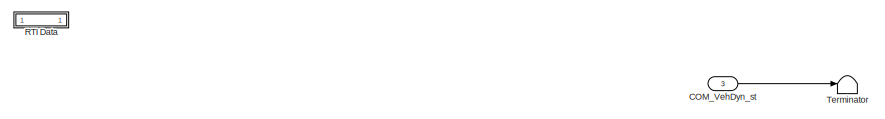
[diagram: root canvas - part 1/2, top left region]
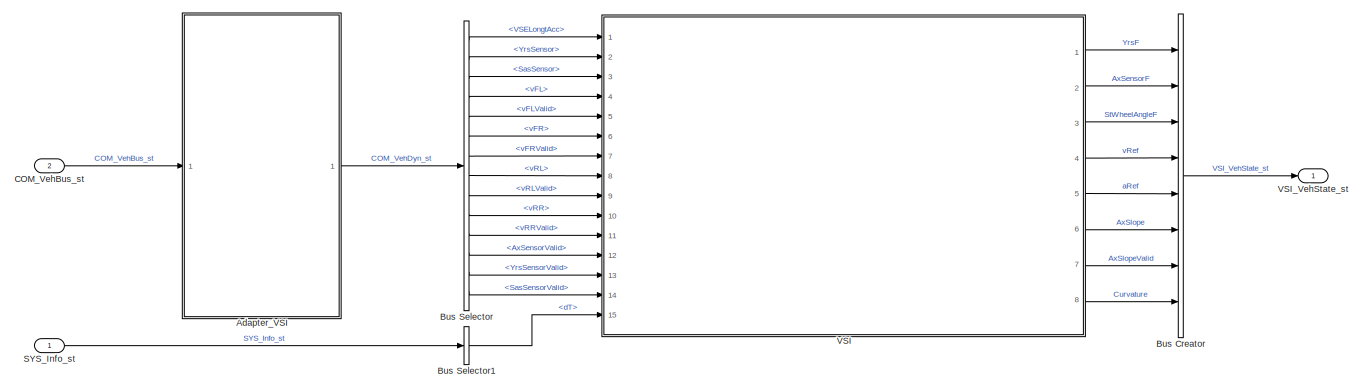
[diagram: root canvas - part 2/2, central region]
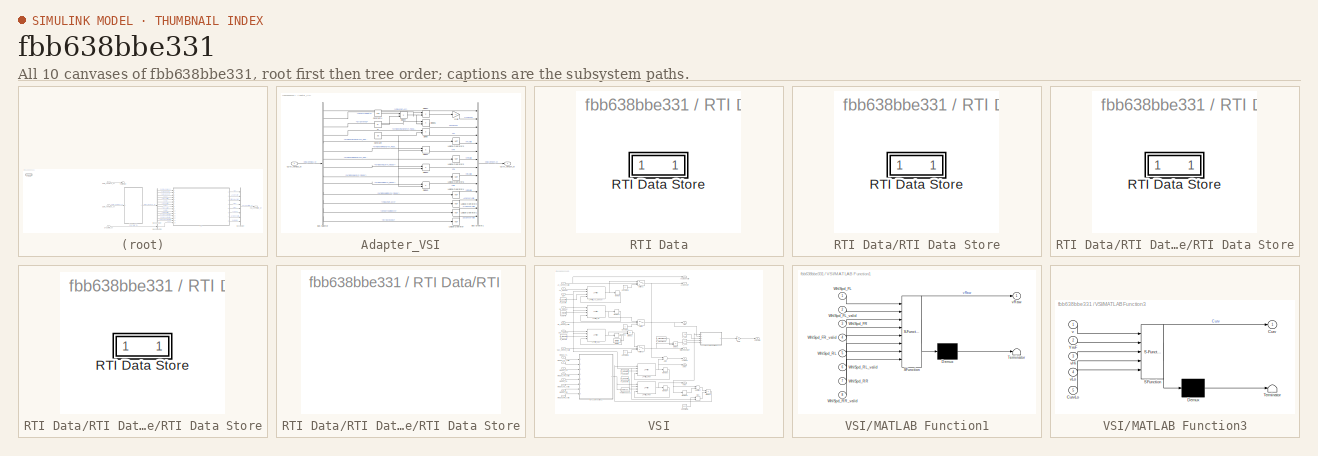
[diagram: thumbnail index - all 10 canvases of the model, root first then tree order]
MODEL slx_fbb638bbe331
KIND model
CONFIG AbsTol = auto
CONFIG EnableMultiTasking = off
CONFIG FixedStep = 0.01
CONFIG MaxStep = auto
CONFIG MinStep = auto
CONFIG PostLoadFcn = if any(exist('dsrtsu_mdlpostloadfcn', 'file') ~= 0), dsrtsu_mdlpostloadfcn('Execute', bdroot); end
CONFIG RelTol = 1e-3
CONFIG SampleTimeConstraint = Unconstrained
CONFIG Solver = FixedStepDiscrete
CONFIG SolverName = FixedStepDiscrete
CONFIG StartTime = 0.0
CONFIG StopTime = inf
BLOCK [SubSystem] Adapter_VSI
  Ports = [1, 1]
  RequestExecContextInheritance = off
BLOCK [BusCreator] Adapter_VSI/Bus Creator1
  DisplayOption = bar
  InheritFromInputs = on
  Inputs = 14
  NonVirtualBus = on
  OutDataTypeStr = Bus: COM_VEHDYN_ST
  Ports = [14, 1]
BLOCK [BusSelector] Adapter_VSI/Bus Selector
  OutputAsBus = off
  OutputSignals = x185.VSELongtAcc,x1E9.VehDynYawRate,x1E5.StrgWhlAng,x24E.WhlGndVelLNonDrvn_Radar,x24E.WhlGndVelLNonDrvnV_Radar,x24E.WhlGndVelRNonDrvn_Radar,x24E.WhlGndVelRNonDrvnV_Radar,x24C.WhlGndVelLDrvn_Radar,x24C.WhlGndVelLDrvn_Radar,x24C.WhlGndVelRDrvn_Radar,x24C.WhlGndVelRDrvnV_Radar,x185.VSELongtAccV,x1E9.VehDynYawRateV,x1E5.StrgWhlAngV
  Ports = [1, 14]
BLOCK [Inport] Adapter_VSI/COM_VehBus_st
  IconDisplay = Port number
  OutDataTypeStr = Bus: COM_VEHBUS_ST
BLOCK [Outport] Adapter_VSI/COM_VehDyn_st
  IconDisplay = Port number
  OutDataTypeStr = Bus: COM_VEHDYN_ST
BLOCK [Constant] Adapter_VSI/Constant
  Value = 3.6
BLOCK [Constant] Adapter_VSI/Constant4
  Value = 180
BLOCK [Product] Adapter_VSI/Divide
  InputSameDT = off
  Inputs = */
  OutDataTypeStr = single
  Ports = [2, 1]
  RndMeth = Floor
  SaturateOnIntegerOverflow = off
BLOCK [Product] Adapter_VSI/Divide1
  InputSameDT = off
  Inputs = */
  OutDataTypeStr = single
  Ports = [2, 1]
  RndMeth = Floor
  SaturateOnIntegerOverflow = off
BLOCK [Product] Adapter_VSI/Divide2
  InputSameDT = off
  Inputs = */
  OutDataTypeStr = single
  Ports = [2, 1]
  RndMeth = Floor
  SaturateOnIntegerOverflow = off
BLOCK [Product] Adapter_VSI/Divide3
  InputSameDT = off
  Inputs = */
  OutDataTypeStr = single
  Ports = [2, 1]
  RndMeth = Floor
  SaturateOnIntegerOverflow = off
BLOCK [Product] Adapter_VSI/Divide4
  InputSameDT = off
  Inputs = */
  OutDataTypeStr = Inherit: Inherit via internal rule
  Ports = [2, 1]
  RndMeth = Floor
  SaturateOnIntegerOverflow = off
BLOCK [Product] Adapter_VSI/Divide6
  InputSameDT = off
  Inputs = */
  OutDataTypeStr = single
  Ports = [2, 1]
  RndMeth = Floor
  SaturateOnIntegerOverflow = off
BLOCK [Product] Adapter_VSI/Divide7
  InputSameDT = off
  Inputs = */
  OutDataTypeStr = single
  Ports = [2, 1]
  RndMeth = Floor
  SaturateOnIntegerOverflow = off
BLOCK [Gain] Adapter_VSI/Gain
  Gain = -1
  OutDataTypeStr = Inherit: Inherit via internal rule
  ParamDataTypeStr = Inherit: Inherit via internal rule
  SaturateOnIntegerOverflow = off
BLOCK [Logic] Adapter_VSI/Logical Operator
  AllPortsSameDT = off
  Operator = NOT
  OutDataTypeStr = boolean
  Ports = [1, 1]
BLOCK [Logic] Adapter_VSI/Logical Operator1
  AllPortsSameDT = off
  Operator = NOT
  OutDataTypeStr = boolean
  Ports = [1, 1]
BLOCK [Logic] Adapter_VSI/Logical Operator2
  AllPortsSameDT = off
  Operator = NOT
  OutDataTypeStr = boolean
  Ports = [1, 1]
BLOCK [Logic] Adapter_VSI/Logical Operator3
  AllPortsSameDT = off
  Operator = NOT
  OutDataTypeStr = boolean
  Ports = [1, 1]
BLOCK [Logic] Adapter_VSI/Logical Operator4
  AllPortsSameDT = off
  Operator = NOT
  OutDataTypeStr = boolean
  Ports = [1, 1]
BLOCK [Logic] Adapter_VSI/Logical Operator5
  AllPortsSameDT = off
  Operator = NOT
  OutDataTypeStr = boolean
  Ports = [1, 1]
BLOCK [Logic] Adapter_VSI/Logical Operator6
  AllPortsSameDT = off
  Operator = NOT
  OutDataTypeStr = boolean
  Ports = [1, 1]
BLOCK [Constant] Adapter_VSI/Pi
  OutDataTypeStr = Inherit: Inherit via back propagation
  Value = pi
BLOCK [BusCreator] Bus Creator
  DisplayOption = bar
  InheritFromInputs = off
  Inputs = 8
  NonVirtualBus = on
  OutDataTypeStr = Bus: VSI_VEHSTATE_ST
  Ports = [8, 1]
BLOCK [BusSelector] Bus Selector
  OutputAsBus = off
  OutputSignals = VSELongtAcc,YrsSensor,SasSensor,vFL,vFLValid,vFR,vFRValid,vRL,vRLValid,vRR,vRRValid,AxSensorValid,YrsSensorValid,SasSensorValid
  Ports = [1, 14]
BLOCK [BusSelector] Bus Selector1
  OutputAsBus = off
  OutputSignals = dT
  Ports = [1, 1]
BLOCK [Inport] COM_VehBus_st
  BusOutputAsStruct = on
  IconDisplay = Port number
  OutDataTypeStr = Bus: COM_VEHBUS_ST
  Port = 2
BLOCK [Inport] COM_VehDyn_st
  BusOutputAsStruct = on
  IconDisplay = Port number
  OutDataTypeStr = Bus: COM_VEHDYN_ST
  Port = 3
BLOCK [SubSystem] RTI Data
  CopyFcn = if exist('rtidc'), try,  rtidc('DataHostBlockClbCopy', gcbh); catch, disp(['Warning: ''CopyFcn'' for RTI Data block failed: ' lasterr]); end, end,
  DeleteFcn = if exist('rtidc'), try,  rtidc('DataHostBlockClbDelete', gcbh); catch, disp(['Warning: ''DeleteFcn'' for RTI Data block failed: ' lasterr]); end, end,
  LoadFcn = if exist('rtidc'), try,  rtidc('DataHostBlockClbLoad', gcbh); catch, disp(['Warning: ''LoadFcn'' for RTI Data block failed: ' lasterr]); end, end,
  ModelCloseFcn = if exist('rtidc'), try,  rtidc('DataHostBlockClbModelClose', gcbh); catch, disp(['Warning: ''ModelCloseFcn'' for RTI Data block failed: ' lasterr]); end, end,
  NameChangeFcn = if exist('rtidc'), try,  rtidc('DataHostBlockClbNameChange', gcbh); catch, disp(['Warning: ''NameChangeFcn'' for RTI Data block failed: ' lasterr]); end, end,
  Ports = []
  PostSaveFcn = if exist('rtidc'), try,  rtidc('DataHostBlockClbPostSave', gcbh); catch, disp(['Warning: ''PostSaveFcn'' for RTI Data block failed: ' lasterr]); end, end,
  PreSaveFcn = if exist('rtidc'), try,  rtidc('DataHostBlockClbPreSave', gcbh); catch, disp(['Warning: ''PreSaveFcn'' for RTI Data block failed: ' lasterr]); end, end,
  RequestExecContextInheritance = off
  Tag = struct('RTIDataServer',struct('RTIDataServerVs','2','RTIModelDescription','struct(''main'',''VSI'',''sub'','''',''isMp'',0)'))
BLOCK [SubSystem] RTI Data/RTI Data Store
  Ports = []
  RequestExecContextInheritance = off
  Tag = struct('private',struct('version',struct('dsVer',uint32(2),'dsVerCreation',uint32(2),'RTI',struct('ver','7.12','type','RTI1401')),'access',struct('type','Model','isPerm',1,'created',['20-Nov-2020 11:10:38'],'modified',['07-Jan-2021 20:09:42'],'location','')),'public',struct('main',struct('data',[]),'sub',struct('name',{{'VSI'}},'data',{{struct('TH',struct('thTaskInfo',struct('taskType',{'TIMER','H...<+877ch>
BLOCK [SubSystem] RTI Data/RTI Data Store/RTI Data Store
  Ports = []
  RequestExecContextInheritance = off
BLOCK [SubSystem] RTI Data/RTI Data Store/RTI Data Store/RTI Data Store
  Ports = []
  RequestExecContextInheritance = off
BLOCK [SubSystem] RTI Data/RTI Data Store/RTI Data Store/RTI Data Store/RTI Data Store
  Ports = []
  RequestExecContextInheritance = off
BLOCK [Inport] SYS_Info_st
  BusOutputAsStruct = on
  IconDisplay = Port number
  OutDataTypeStr = Bus: SYS_INFO_ST
BLOCK [Terminator] Terminator
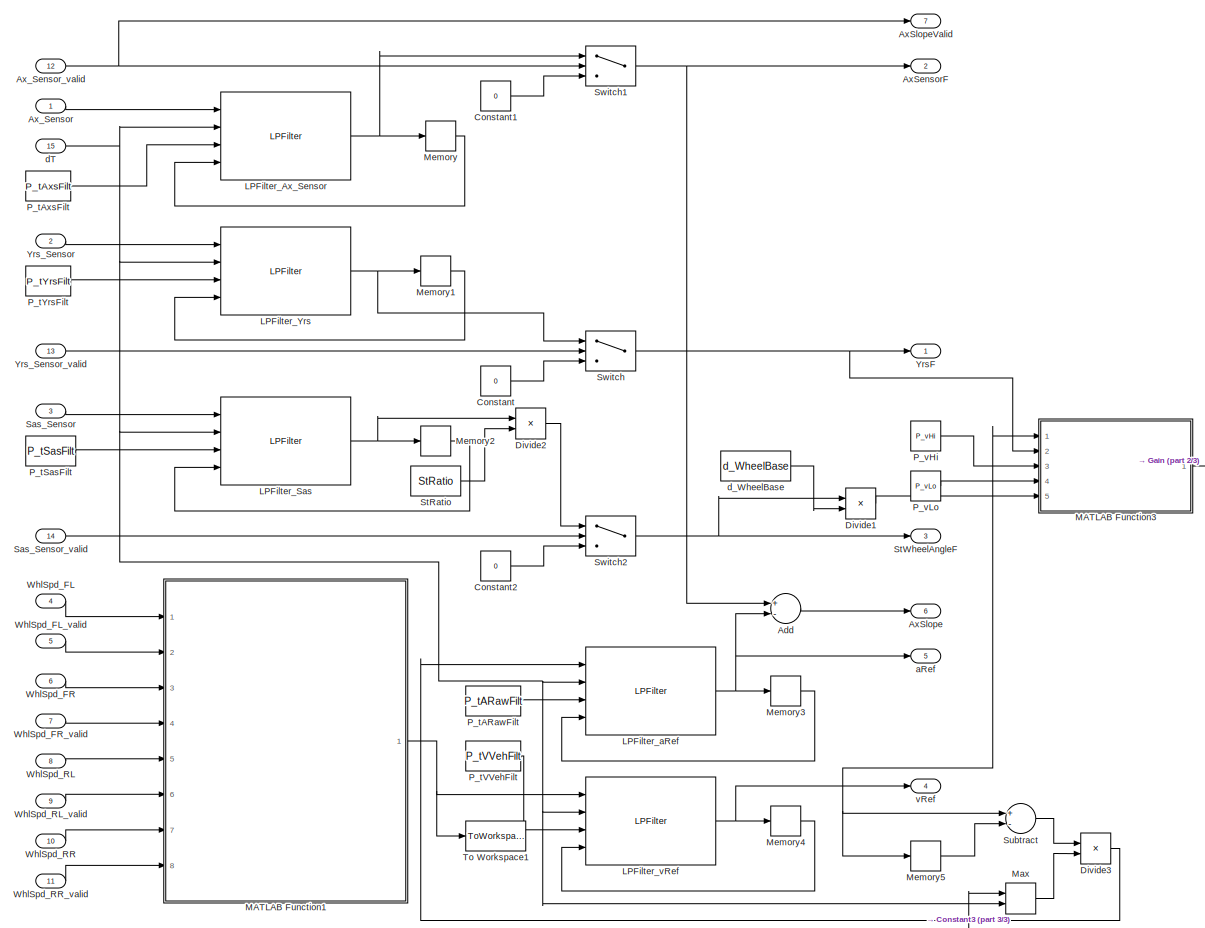
[diagram: VSI - part 1/3, most of the canvas]
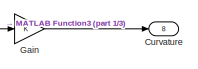
[diagram: VSI - part 2/3, middle right region]
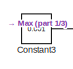
[diagram: VSI - part 3/3, bottom center region]
BLOCK [SubSystem] VSI
  Ports = [15, 8]
  RequestExecContextInheritance = off
BLOCK [Sum] VSI/Add
  InputSameDT = off
  Inputs = +-
  OutDataTypeStr = Inherit: Inherit via internal rule
  Ports = [2, 1]
  SaturateOnIntegerOverflow = off
BLOCK [Outport] VSI/AxSensorF
  IconDisplay = Port number
  Port = 2
BLOCK [Outport] VSI/AxSlope
  IconDisplay = Port number
  Port = 6
BLOCK [Outport] VSI/AxSlopeValid
  IconDisplay = Port number
  Port = 7
BLOCK [Inport] VSI/Ax_Sensor
  IconDisplay = Port number
BLOCK [Inport] VSI/Ax_Sensor_valid
  IconDisplay = Port number
  Port = 12
BLOCK [Constant] VSI/Constant
  Value = 0
BLOCK [Constant] VSI/Constant1
  Value = 0
BLOCK [Constant] VSI/Constant2
  Value = 0
BLOCK [Constant] VSI/Constant3
  Value = 0.001
BLOCK [Outport] VSI/Curvature
  IconDisplay = Port number
  Port = 8
BLOCK [Product] VSI/Divide1
  InputSameDT = off
  Inputs = */
  OutDataTypeStr = Inherit: Inherit via internal rule
  Ports = [2, 1]
  RndMeth = Floor
  SaturateOnIntegerOverflow = off
BLOCK [Product] VSI/Divide2
  InputSameDT = off
  Inputs = */
  OutDataTypeStr = Inherit: Inherit via internal rule
  Ports = [2, 1]
  RndMeth = Floor
  SaturateOnIntegerOverflow = off
BLOCK [Product] VSI/Divide3
  InputSameDT = off
  Inputs = */
  OutDataTypeStr = Inherit: Inherit via internal rule
  Ports = [2, 1]
  RndMeth = Floor
  SaturateOnIntegerOverflow = off
BLOCK [Gain] VSI/Gain
  OutDataTypeStr = Inherit: Inherit via internal rule
  ParamDataTypeStr = Inherit: Inherit via internal rule
  SaturateOnIntegerOverflow = off
BLOCK [Reference] VSI/LPFilter_Ax_Sensor  REF=LPFilter/LPFilter
  Ports = [4, 1]
  SourceBlock = LPFilter/LPFilter
  SourceProductName = CustomLib
  SourceType = SubSystem
BLOCK [Reference] VSI/LPFilter_Sas  REF=LPFilter/LPFilter
  Ports = [4, 1]
  SourceBlock = LPFilter/LPFilter
  SourceProductName = CustomLib
  SourceType = SubSystem
BLOCK [Reference] VSI/LPFilter_Yrs  REF=LPFilter/LPFilter
  Ports = [4, 1]
  SourceBlock = LPFilter/LPFilter
  SourceProductName = CustomLib
  SourceType = SubSystem
BLOCK [Reference] VSI/LPFilter_aRef  REF=LPFilter/LPFilter
  Ports = [4, 1]
  SourceBlock = LPFilter/LPFilter
  SourceProductName = CustomLib
  SourceType = SubSystem
BLOCK [Reference] VSI/LPFilter_vRef  REF=LPFilter/LPFilter
  Ports = [4, 1]
  SourceBlock = LPFilter/LPFilter
  SourceProductName = CustomLib
  SourceType = SubSystem
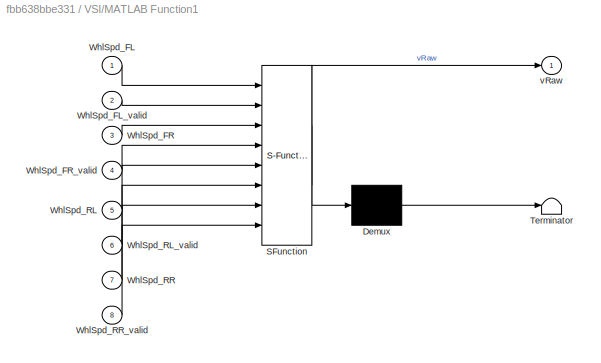
BLOCK [SubSystem] VSI/MATLAB Function1
  ErrorFcn = Stateflow.Translate.translate
  PermitHierarchicalResolution = ExplicitOnly
  Ports = [8, 1]
  RequestExecContextInheritance = off
  SFBlockType = MATLAB Function
  TreatAsAtomicUnit = on
BLOCK [Demux] VSI/MATLAB Function1/ Demux 
  Outputs = 1
  Ports = [1, 1]
BLOCK [S-Function] VSI/MATLAB Function1/ SFunction 
  EnableBusSupport = on
  FunctionName = sf_sfun
  PortCounts = [8 2]
  Ports = [8, 2]
  SFcnIsStateOwnerBlock = off
  SFunctionDeploymentMode = off
  Tag = Stateflow S-Function VSI 3
BLOCK [Terminator] VSI/MATLAB Function1/ Terminator 
BLOCK [Inport] VSI/MATLAB Function1/WhlSpd_FL
  IconDisplay = Port number
BLOCK [Inport] VSI/MATLAB Function1/WhlSpd_FL_valid
  IconDisplay = Port number
  Port = 2
BLOCK [Inport] VSI/MATLAB Function1/WhlSpd_FR
  IconDisplay = Port number
  Port = 3
BLOCK [Inport] VSI/MATLAB Function1/WhlSpd_FR_valid
  IconDisplay = Port number
  Port = 4
BLOCK [Inport] VSI/MATLAB Function1/WhlSpd_RL
  IconDisplay = Port number
  Port = 5
BLOCK [Inport] VSI/MATLAB Function1/WhlSpd_RL_valid
  IconDisplay = Port number
  Port = 6
BLOCK [Inport] VSI/MATLAB Function1/WhlSpd_RR
  IconDisplay = Port number
  Port = 7
BLOCK [Inport] VSI/MATLAB Function1/WhlSpd_RR_valid
  IconDisplay = Port number
  Port = 8
BLOCK [Outport] VSI/MATLAB Function1/vRaw
  IconDisplay = Port number
BLOCK [SubSystem] VSI/MATLAB Function3
  ErrorFcn = Stateflow.Translate.translate
  PermitHierarchicalResolution = ExplicitOnly
  Ports = [5, 1]
  RequestExecContextInheritance = off
  SFBlockType = MATLAB Function
  TreatAsAtomicUnit = on
BLOCK [Demux] VSI/MATLAB Function3/ Demux 
  Outputs = 1
  Ports = [1, 1]
BLOCK [S-Function] VSI/MATLAB Function3/ SFunction 
  EnableBusSupport = on
  FunctionName = sf_sfun
  PortCounts = [5 2]
  Ports = [5, 2]
  SFcnIsStateOwnerBlock = off
  SFunctionDeploymentMode = off
  Tag = Stateflow S-Function VSI 5
BLOCK [Terminator] VSI/MATLAB Function3/ Terminator 
BLOCK [Outport] VSI/MATLAB Function3/Curv
  IconDisplay = Port number
BLOCK [Inport] VSI/MATLAB Function3/CurvLo
  IconDisplay = Port number
  Port = 5
BLOCK [Inport] VSI/MATLAB Function3/YrsF
  IconDisplay = Port number
  Port = 2
BLOCK [Inport] VSI/MATLAB Function3/v
  IconDisplay = Port number
BLOCK [Inport] VSI/MATLAB Function3/vHi
  IconDisplay = Port number
  Port = 3
BLOCK [Inport] VSI/MATLAB Function3/vLo
  IconDisplay = Port number
  Port = 4
BLOCK [MinMax] VSI/Max
  Function = max
  InputSameDT = off
  Inputs = 2
  OutDataTypeStr = single
  Ports = [2, 1]
  SaturateOnIntegerOverflow = off
BLOCK [Memory] VSI/Memory
BLOCK [Memory] VSI/Memory1
BLOCK [Memory] VSI/Memory2
BLOCK [Memory] VSI/Memory3
BLOCK [Memory] VSI/Memory4
BLOCK [Memory] VSI/Memory5
BLOCK [Constant] VSI/P_tARawFilt
  Value = P_tARawFilt
BLOCK [Constant] VSI/P_tAxsFilt
  Value = P_tAxsFilt
BLOCK [Constant] VSI/P_tSasFilt
  Value = P_tSasFilt
BLOCK [Constant] VSI/P_tVVehFilt
  Value = P_tVVehFilt
BLOCK [Constant] VSI/P_tYrsFilt
  Value = P_tYrsFilt
BLOCK [Constant] VSI/P_vHi
  Value = P_vHi
BLOCK [Constant] VSI/P_vLo
  Value = P_vLo
BLOCK [Inport] VSI/Sas_Sensor
  IconDisplay = Port number
  Port = 3
BLOCK [Inport] VSI/Sas_Sensor_valid
  IconDisplay = Port number
  Port = 14
BLOCK [Constant] VSI/StRatio
  Value = StRatio
BLOCK [Outport] VSI/StWheelAngleF
  IconDisplay = Port number
  Port = 3
BLOCK [Sum] VSI/Subtract
  InputSameDT = off
  Inputs = +-
  OutDataTypeStr = Inherit: Inherit via internal rule
  Ports = [2, 1]
  SaturateOnIntegerOverflow = off
BLOCK [Switch] VSI/Switch
  Criteria = u2 > Threshold
  InputSameDT = off
  OutDataTypeStr = single
  SaturateOnIntegerOverflow = off
BLOCK [Switch] VSI/Switch1
  Criteria = u2 > Threshold
  InputSameDT = off
  OutDataTypeStr = single
  SaturateOnIntegerOverflow = off
BLOCK [Switch] VSI/Switch2
  Criteria = u2 > Threshold
  InputSameDT = off
  SaturateOnIntegerOverflow = off
BLOCK [ToWorkspace] VSI/To Workspace1
  FixptAsFi = on
  MaxDataPoints = inf
  Ports = [1]
  SampleTime = -1
  Save2DSignal = 3-D array (concatenate along third dimension)
  SaveFormat = Timeseries
  VariableName = vRaw
BLOCK [Inport] VSI/WhlSpd_FL
  IconDisplay = Port number
  Port = 4
BLOCK [Inport] VSI/WhlSpd_FL_valid
  IconDisplay = Port number
  Port = 5
BLOCK [Inport] VSI/WhlSpd_FR
  IconDisplay = Port number
  Port = 6
BLOCK [Inport] VSI/WhlSpd_FR_valid
  IconDisplay = Port number
  Port = 7
BLOCK [Inport] VSI/WhlSpd_RL
  IconDisplay = Port number
  Port = 8
BLOCK [Inport] VSI/WhlSpd_RL_valid
  IconDisplay = Port number
  Port = 9
BLOCK [Inport] VSI/WhlSpd_RR
  IconDisplay = Port number
  Port = 10
BLOCK [Inport] VSI/WhlSpd_RR_valid
  IconDisplay = Port number
  Port = 11
BLOCK [Outport] VSI/YrsF
  IconDisplay = Port number
BLOCK [Inport] VSI/Yrs_Sensor
  IconDisplay = Port number
  Port = 2
BLOCK [Inport] VSI/Yrs_Sensor_valid
  IconDisplay = Port number
  Port = 13
BLOCK [Outport] VSI/aRef
  IconDisplay = Port number
  Port = 5
BLOCK [Inport] VSI/dT
  IconDisplay = Port number
  Port = 15
BLOCK [Constant] VSI/d_WheelBase
  Value = d_WheelBase
BLOCK [Outport] VSI/vRef
  IconDisplay = Port number
  Port = 4
BLOCK [Outport] VSI_VehState_st
  IconDisplay = Port number
  OutDataTypeStr = Bus: VSI_VEHSTATE_ST
LINE Adapter_VSI/Bus Creator1:1 -> Adapter_VSI/COM_VehDyn_st:1
LINE Adapter_VSI/Bus Selector:1 -> Adapter_VSI/Bus Creator1:1
LINE Adapter_VSI/Bus Selector:10 -> Adapter_VSI/Divide3:1
LINE Adapter_VSI/Bus Selector:11 -> Adapter_VSI/Logical Operator4:1
LINE Adapter_VSI/Bus Selector:12 -> Adapter_VSI/Logical Operator2:1
LINE Adapter_VSI/Bus Selector:13 -> Adapter_VSI/Logical Operator1:1
LINE Adapter_VSI/Bus Selector:14 -> Adapter_VSI/Logical Operator:1
LINE Adapter_VSI/Bus Selector:2 -> Adapter_VSI/Divide7:1
LINE Adapter_VSI/Bus Selector:3 -> Adapter_VSI/Divide6:1
LINE Adapter_VSI/Bus Selector:4 -> Adapter_VSI/Divide:1
LINE Adapter_VSI/Bus Selector:5 -> Adapter_VSI/Logical Operator3:1
LINE Adapter_VSI/Bus Selector:6 -> Adapter_VSI/Divide1:1
LINE Adapter_VSI/Bus Selector:7 -> Adapter_VSI/Logical Operator5:1
LINE Adapter_VSI/Bus Selector:8 -> Adapter_VSI/Divide2:1
LINE Adapter_VSI/Bus Selector:9 -> Adapter_VSI/Logical Operator6:1
LINE Adapter_VSI/COM_VehBus_st:1 -> Adapter_VSI/Bus Selector:1
LINE Adapter_VSI/Constant4:1 -> Adapter_VSI/Divide4:1
NET Adapter_VSI/Constant:1 -> Adapter_VSI/Divide1:2, Adapter_VSI/Divide2:2, Adapter_VSI/Divide3:2, Adapter_VSI/Divide:2
LINE Adapter_VSI/Divide1:1 -> Adapter_VSI/Bus Creator1:6
LINE Adapter_VSI/Divide2:1 -> Adapter_VSI/Bus Creator1:8
LINE Adapter_VSI/Divide3:1 -> Adapter_VSI/Bus Creator1:10
NET Adapter_VSI/Divide4:1 -> Adapter_VSI/Divide6:2, Adapter_VSI/Divide7:2
LINE Adapter_VSI/Divide6:1 -> Adapter_VSI/Bus Creator1:3
LINE Adapter_VSI/Divide7:1 -> Adapter_VSI/Gain:1
LINE Adapter_VSI/Divide:1 -> Adapter_VSI/Bus Creator1:4
LINE Adapter_VSI/Gain:1 -> Adapter_VSI/Bus Creator1:2
LINE Adapter_VSI/Logical Operator1:1 -> Adapter_VSI/Bus Creator1:13
LINE Adapter_VSI/Logical Operator2:1 -> Adapter_VSI/Bus Creator1:12
LINE Adapter_VSI/Logical Operator3:1 -> Adapter_VSI/Bus Creator1:5
LINE Adapter_VSI/Logical Operator4:1 -> Adapter_VSI/Bus Creator1:11
LINE Adapter_VSI/Logical Operator5:1 -> Adapter_VSI/Bus Creator1:7
LINE Adapter_VSI/Logical Operator6:1 -> Adapter_VSI/Bus Creator1:9
LINE Adapter_VSI/Logical Operator:1 -> Adapter_VSI/Bus Creator1:14
LINE Adapter_VSI/Pi:1 -> Adapter_VSI/Divide4:2
LINE Adapter_VSI:1 -> Bus Selector:1
LINE Bus Creator:1 -> VSI_VehState_st:1
LINE Bus Selector1:1 -> VSI:15
LINE Bus Selector:1 -> VSI:1
LINE Bus Selector:10 -> VSI:10
LINE Bus Selector:11 -> VSI:11
LINE Bus Selector:12 -> VSI:12
LINE Bus Selector:13 -> VSI:13
LINE Bus Selector:14 -> VSI:14
LINE Bus Selector:2 -> VSI:2
LINE Bus Selector:3 -> VSI:3
LINE Bus Selector:4 -> VSI:4
LINE Bus Selector:5 -> VSI:5
LINE Bus Selector:6 -> VSI:6
LINE Bus Selector:7 -> VSI:7
LINE Bus Selector:8 -> VSI:8
LINE Bus Selector:9 -> VSI:9
LINE COM_VehBus_st:1 -> Adapter_VSI:1
LINE COM_VehDyn_st:1 -> Terminator:1
LINE SYS_Info_st:1 -> Bus Selector1:1
LINE VSI/Add:1 -> VSI/AxSlope:1
LINE VSI/Ax_Sensor:1 -> VSI/LPFilter_Ax_Sensor:1
NET VSI/Ax_Sensor_valid:1 -> VSI/AxSlopeValid:1, VSI/Switch1:2
LINE VSI/Constant1:1 -> VSI/Switch1:3
LINE VSI/Constant2:1 -> VSI/Switch2:3
LINE VSI/Constant3:1 -> VSI/Max:1
LINE VSI/Constant:1 -> VSI/Switch:3
LINE VSI/Divide1:1 -> VSI/MATLAB Function3:5
LINE VSI/Divide2:1 -> VSI/Switch2:1
LINE VSI/Divide3:1 -> VSI/LPFilter_aRef:1
LINE VSI/Gain:1 -> VSI/Curvature:1
NET VSI/LPFilter_Ax_Sensor:1 -> VSI/Memory:1, VSI/Switch1:1
NET VSI/LPFilter_Sas:1 -> VSI/Divide2:1, VSI/Memory2:1
NET VSI/LPFilter_Yrs:1 -> VSI/Memory1:1, VSI/Switch:1
NET VSI/LPFilter_aRef:1 -> VSI/Add:2, VSI/Memory3:1, VSI/aRef:1
NET VSI/LPFilter_vRef:1 -> VSI/MATLAB Function3:1, VSI/Memory4:1, VSI/Memory5:1, VSI/Subtract:1, VSI/vRef:1
NET VSI/MATLAB Function1:1 -> VSI/LPFilter_vRef:1, VSI/To Workspace1:1
LINE VSI/MATLAB Function3:1 -> VSI/Gain:1
LINE VSI/Max:1 -> VSI/Divide3:2
LINE VSI/Memory1:1 -> VSI/LPFilter_Yrs:4
LINE VSI/Memory2:1 -> VSI/LPFilter_Sas:4
LINE VSI/Memory3:1 -> VSI/LPFilter_aRef:4
LINE VSI/Memory4:1 -> VSI/LPFilter_vRef:4
LINE VSI/Memory5:1 -> VSI/Subtract:2
LINE VSI/Memory:1 -> VSI/LPFilter_Ax_Sensor:4
LINE VSI/P_tARawFilt:1 -> VSI/LPFilter_aRef:3
LINE VSI/P_tAxsFilt:1 -> VSI/LPFilter_Ax_Sensor:3
LINE VSI/P_tSasFilt:1 -> VSI/LPFilter_Sas:3
LINE VSI/P_tVVehFilt:1 -> VSI/LPFilter_vRef:3
LINE VSI/P_tYrsFilt:1 -> VSI/LPFilter_Yrs:3
LINE VSI/P_vHi:1 -> VSI/MATLAB Function3:3
LINE VSI/P_vLo:1 -> VSI/MATLAB Function3:4
LINE VSI/Sas_Sensor:1 -> VSI/LPFilter_Sas:1
LINE VSI/Sas_Sensor_valid:1 -> VSI/Switch2:2
LINE VSI/StRatio:1 -> VSI/Divide2:2
LINE VSI/Subtract:1 -> VSI/Divide3:1
NET VSI/Switch1:1 -> VSI/Add:1, VSI/AxSensorF:1
NET VSI/Switch2:1 -> VSI/Divide1:1, VSI/StWheelAngleF:1
NET VSI/Switch:1 -> VSI/MATLAB Function3:2, VSI/YrsF:1
LINE VSI/WhlSpd_FL:1 -> VSI/MATLAB Function1:1
LINE VSI/WhlSpd_FL_valid:1 -> VSI/MATLAB Function1:2
LINE VSI/WhlSpd_FR:1 -> VSI/MATLAB Function1:3
LINE VSI/WhlSpd_FR_valid:1 -> VSI/MATLAB Function1:4
LINE VSI/WhlSpd_RL:1 -> VSI/MATLAB Function1:5
LINE VSI/WhlSpd_RL_valid:1 -> VSI/MATLAB Function1:6
LINE VSI/WhlSpd_RR:1 -> VSI/MATLAB Function1:7
LINE VSI/WhlSpd_RR_valid:1 -> VSI/MATLAB Function1:8
LINE VSI/Yrs_Sensor:1 -> VSI/LPFilter_Yrs:1
LINE VSI/Yrs_Sensor_valid:1 -> VSI/Switch:2
NET VSI/dT:1 -> VSI/LPFilter_Ax_Sensor:2, VSI/LPFilter_Sas:2, VSI/LPFilter_Yrs:2, VSI/LPFilter_aRef:2, VSI/LPFilter_vRef:2, VSI/Max:2
LINE VSI/d_WheelBase:1 -> VSI/Divide1:2
LINE VSI:1 -> Bus Creator:1
LINE VSI:2 -> Bus Creator:2
LINE VSI:3 -> Bus Creator:3
LINE VSI:4 -> Bus Creator:4
LINE VSI:5 -> Bus Creator:5
LINE VSI:6 -> Bus Creator:6
LINE VSI:7 -> Bus Creator:7
LINE VSI:8 -> Bus Creator:8
note: NET lines group one-source signal fan-out (src -> all destinations, sorted); 1:1 wires keep LINE
CHART VSI/MATLAB Function1 states=1 transitions=1
  STATE_LABEL 'eML_blk_kernel()'
  STATE_LABEL 'SCRIPT:\nfunction vRaw = vRef_cal(WhlSpd_FL,WhlSpd_FL_valid,WhlSpd_FR,WhlSpd_FR_valid,WhlSpd_RL,WhlSpd_RL_valid,WhlSpd_RR,WhlSpd_RR_valid)\n\nWhlSpd_valid_cnt = 0;\nif (WhlSpd_FL_valid)\n    WhlSpd_valid_cnt = WhlSpd_valid_cnt + 1;\nelse\nend\nif (WhlSpd_FR_valid)\n    WhlSpd_valid_cnt = WhlSpd_valid_cnt + 1;\nelse\nend\nif (WhlSpd_RL_valid)\n    WhlSpd_valid_cnt = WhlSpd_valid_cnt + 1;\nelse\nend\nif (WhlSpd_RR_...<+495ch>'
CHART VSI/MATLAB Function3 states=1 transitions=1
  STATE_LABEL 'eML_blk_kernel()'
  STATE_LABEL 'SCRIPT:\nfunction Curv = Curvature(v,YrsF,vHi,vLo,CurvLo)\n\nif (v < vLo)\n    Curv = CurvLo;\nelseif (v > vHi)\n    Curv = YrsF/v;\nelse\n    Curv = (v - vLo)/(vHi - vLo)*(YrsF/v - CurvLo) + CurvLo;\nend\n'
